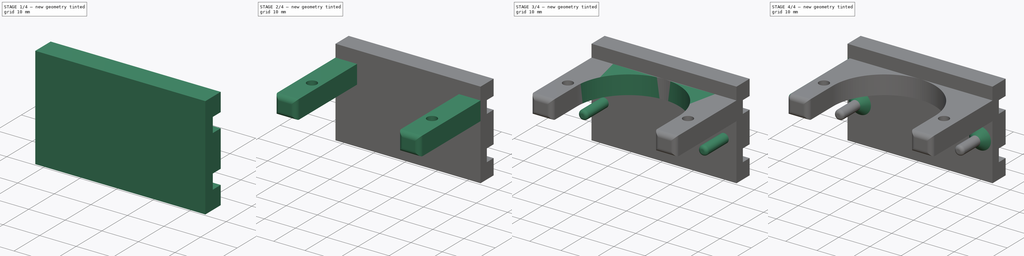
[diagram: build sequence overview — one tinted view per stage of 4, left to right]
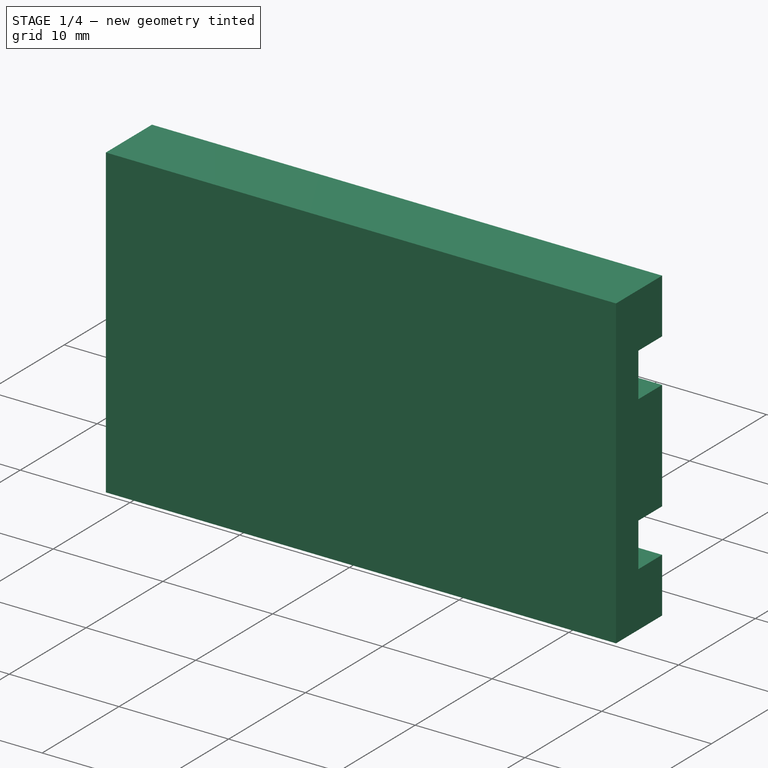
[diagram: stage 1 of 4 — iso view after this stage's code; geometry added in this stage tinted green]
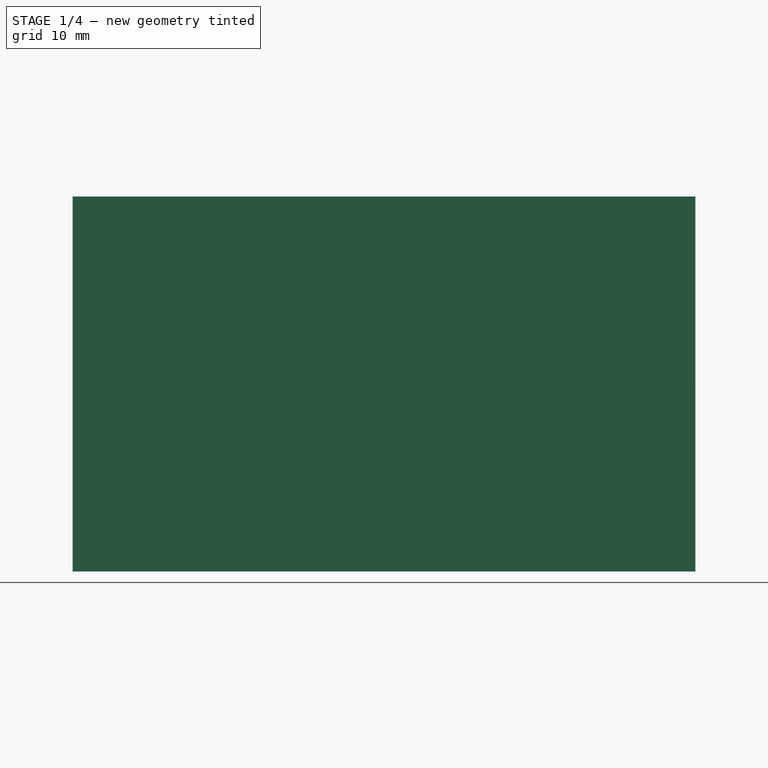
[diagram: stage 1 of 4 — front view after this stage's code; geometry added in this stage tinted green]
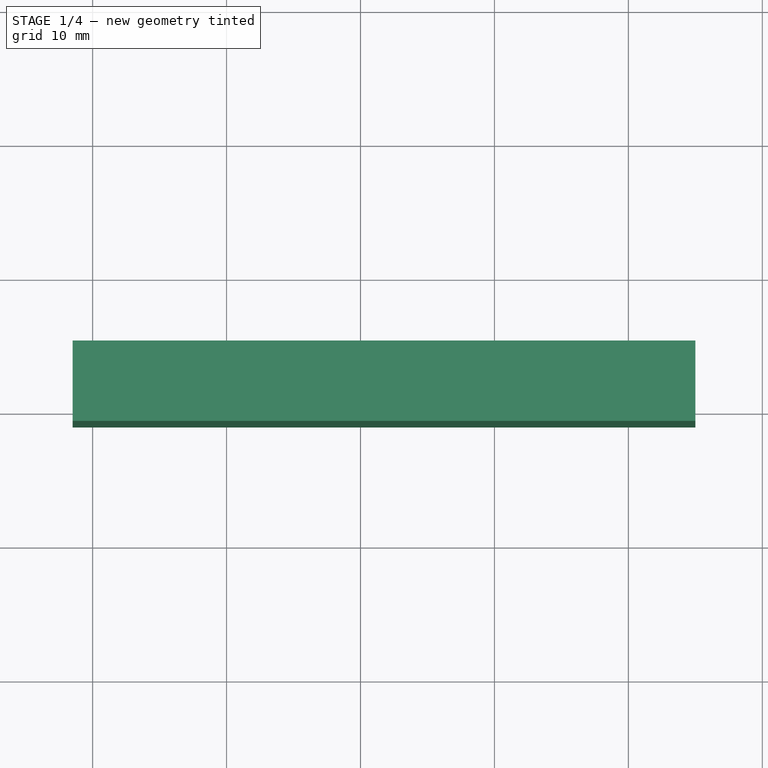
[diagram: stage 1 of 4 — top view after this stage's code; geometry added in this stage tinted green]
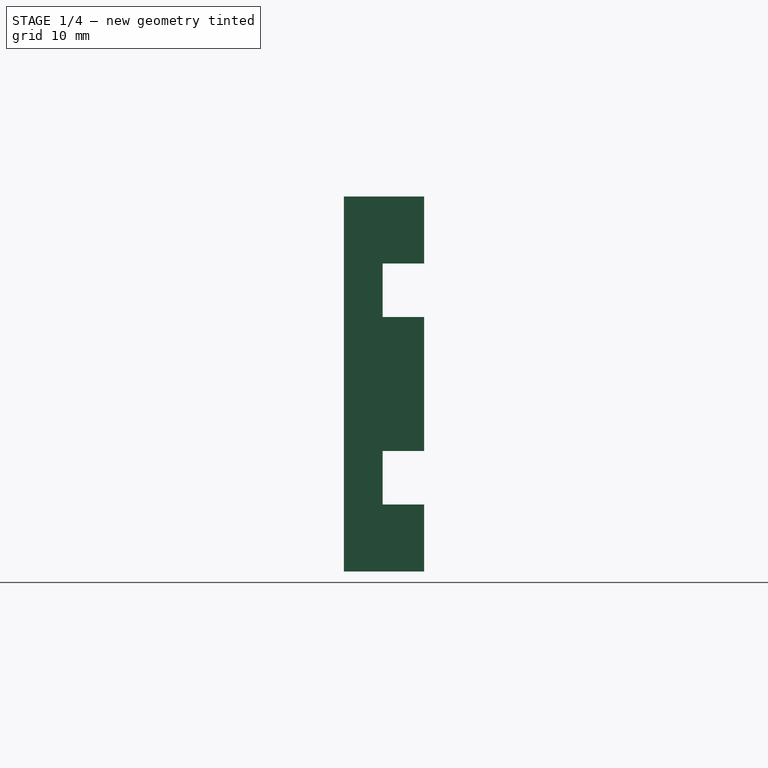
[diagram: stage 1 of 4 — right view after this stage's code; geometry added in this stage tinted green]
FCSTD DOCUMENT  (FreeCAD 1.0R39285 (Git))
Label: wagon-slider-02
License: All rights reserved
LicenseURL: http://en.wikipedia.org/wiki/All_rights_reserved
objects: Sketcher::SketchObject×7, PartDesign::Fillet×4, PartDesign::Pad×3, PartDesign::Pocket×1, PartDesign::Hole×1, PartDesign::Chamfer×1, PartDesign::Body×1, App::Part×1
note: 45 computed .brp shape members not serialized (recipe doc carries the construction recipe); baked Part::Feature solids carry a one-line shape summary decoded from their .brp

FEATURE [Sketcher::SketchObject] Sketch004  label="Sketch-rails"
  ArcFitTolerance = 1e-06
  FullyConstrained = true
  MakeInternals = false
  MapMode = 5
  Placement = pos=(0,-5,0) rot=(1,0,0;1.5708rad)
  sketch-geometry (13):
    g0: LineSegment [constr] StartX=-23.4959 StartY=-17.5 StartZ=0 EndX=58.5041 EndY=-17.5 EndZ=0
    g1: ArcOfCircle CenterX=-53.4959 CenterY=-10.5 CenterZ=0 NormalX=0 NormalY=0 NormalZ=1 AngleXU=0 Radius=2 StartAngle=1.5708 EndAngle=4.71239
    g2: ArcOfCircle CenterX=46.5041 CenterY=-10.5 CenterZ=0 NormalX=0 NormalY=0 NormalZ=1 AngleXU=0 Radius=2 StartAngle=4.71239 EndAngle=7.85398
    g3: LineSegment StartX=-53.4959 StartY=-8.5 StartZ=0 EndX=46.5041 EndY=-8.5 EndZ=0
    g4: LineSegment StartX=-53.4959 StartY=-12.5 StartZ=0 EndX=46.5041 EndY=-12.5 EndZ=0
    g5: ArcOfCircle CenterX=-53.4959 CenterY=-24.5 CenterZ=0 NormalX=0 NormalY=0 NormalZ=1 AngleXU=0 Radius=2 StartAngle=1.5708 EndAngle=4.71239
    g6: ArcOfCircle CenterX=46.5041 CenterY=-24.5 CenterZ=0 NormalX=0 NormalY=0 NormalZ=1 AngleXU=0 Radius=2 StartAngle=4.71239 EndAngle=7.85398
    g7: LineSegment StartX=-53.4959 StartY=-26.5 StartZ=0 EndX=46.5041 EndY=-26.5 EndZ=0
    g8: LineSegment StartX=-53.4959 StartY=-22.5 StartZ=0 EndX=46.5041 EndY=-22.5 EndZ=0
    g9: LineSegment [constr] StartX=-23.4959 StartY=-2.5 StartZ=0 EndX=-23.4959 EndY=-32.5 EndZ=0
    g10: LineSegment [constr] StartX=-23.4959 StartY=-32.5 StartZ=0 EndX=26.5041 EndY=-32.5 EndZ=0
    g11: LineSegment [constr] StartX=26.5041 StartY=-32.5 StartZ=0 EndX=26.5041 EndY=-2.5 EndZ=0
    g12: LineSegment [constr] StartX=26.5041 StartY=-2.5 StartZ=0 EndX=-23.4959 EndY=-2.5 EndZ=0
  constraints (34):
    c: Symmetric(g-6,g-5,g0)
    c: DistanceX(g0,g0) = 82
    c: DistanceX(g-6,g0) = 5
    c: Tangent(g1,g3) = 1.5708
    c: Tangent(g1,g4) = -1.5708
    c: Tangent(g2,g3) = 1.5708
    c: Tangent(g2,g4) = -1.5708
    c: Equal(g1,g2)
    c: Horizontal(g4)
    c: Distance(g1,g2) = 100
    c: Radius(g1) = 2
    c: DistanceY(g0,g1) = 7
    c: DistanceX(g2,g-6) = 2
    c: Symmetric(g1,g5,g0)
    c: Symmetric(g1,g5,g0)
    c: Symmetric(g2,g6,g0)
    c: Symmetric(g2,g6,g0)
    c: Symmetric(g3,g7,g0)
    c: Symmetric(g3,g7,g0)
    c: Symmetric(g4,g8,g0)
    c: Symmetric(g4,g8,g0)
    c: DistanceX(g6,g-5) = 2
    c: Equal(g5,g1)
    c: Coincident(g9,g10)
    c: Coincident(g10,g11)
    c: Coincident(g11,g12)
    c: Coincident(g12,g9)
    c: Vertical(g9)
    c: Vertical(g11)
    c: Horizontal(g10)
    c: Horizontal(g12)
    c: DistanceX(g12,g12) = 50
    c: DistanceY(g11,g11) = 30
    c: Symmetric(g9,g9,g0)
FEATURE [Sketcher::SketchObject] Sketch005  label="Sketch-bed"
  ArcFitTolerance = 1e-06
  FullyConstrained = true
  MakeInternals = false
  MapMode = 5
  Placement = pos=(0,-5,0) rot=(1,0,0;1.5708rad)
  sketch-geometry (13):
    g0: LineSegment [constr] StartX=-21.4959 StartY=-17.5 StartZ=0 EndX=58.5041 EndY=-17.5 EndZ=0
    g1: ArcOfCircle [constr] CenterX=-53.4959 CenterY=-10.5 CenterZ=0 NormalX=0 NormalY=0 NormalZ=1 AngleXU=0 Radius=1.2 StartAngle=1.5708 EndAngle=4.71239
    g2: ArcOfCircle [constr] CenterX=46.5041 CenterY=-10.5 CenterZ=0 NormalX=0 NormalY=0 NormalZ=1 AngleXU=0 Radius=1.2 StartAngle=4.71239 EndAngle=7.85398
    g3: LineSegment [constr] StartX=-53.4959 StartY=-9.3 StartZ=0 EndX=46.5041 EndY=-9.3 EndZ=0
    g4: LineSegment [constr] StartX=-53.4959 StartY=-11.7 StartZ=0 EndX=46.5041 EndY=-11.7 EndZ=0
    g5: ArcOfCircle [constr] CenterX=-53.4959 CenterY=-24.5 CenterZ=0 NormalX=0 NormalY=0 NormalZ=1 AngleXU=0 Radius=1.2 StartAngle=1.5708 EndAngle=4.71239
    g6: ArcOfCircle [constr] CenterX=46.5041 CenterY=-24.5 CenterZ=0 NormalX=0 NormalY=0 NormalZ=1 AngleXU=0 Radius=1.2 StartAngle=4.71239 EndAngle=7.85398
    g7: LineSegment [constr] StartX=-53.4959 StartY=-25.7 StartZ=0 EndX=46.5041 EndY=-25.7 EndZ=0
    g8: LineSegment [constr] StartX=-53.4959 StartY=-23.3 StartZ=0 EndX=46.5041 EndY=-23.3 EndZ=0
    g9: LineSegment StartX=-21.4959 StartY=-3.5 StartZ=0 EndX=-21.4959 EndY=-31.5 EndZ=0
    g10: LineSegment StartX=-21.4959 StartY=-31.5 StartZ=0 EndX=25.0041 EndY=-31.5 EndZ=0
    g11: LineSegment StartX=25.0041 StartY=-31.5 StartZ=0 EndX=25.0041 EndY=-3.5 EndZ=0
    g12: LineSegment StartX=25.0041 StartY=-3.5 StartZ=0 EndX=-21.4959 EndY=-3.5 EndZ=0
  constraints (35):
    c: Symmetric(g-6,g-5,g0)
    c: DistanceX(g0,g0) = 80
    c: DistanceX(g-6,g0) = 5
    c: Tangent(g1,g3) = 1.5708
    c: Tangent(g1,g4) = -1.5708
    c: Tangent(g2,g3) = 1.5708
    c: Tangent(g2,g4) = -1.5708
    c: Equal(g1,g2)
    c: Horizontal(g4)
    c: Distance(g1,g2) = 100
    c: Radius(g1) = 1.2
    c: DistanceY(g0,g1) = 7
    c: DistanceX(g2,g-6) = 2
    c: Symmetric(g1,g5,g0)
    c: Symmetric(g1,g5,g0)
    c: Symmetric(g2,g6,g0)
    c: Symmetric(g2,g6,g0)
    c: Symmetric(g3,g7,g0)
    c: Symmetric(g3,g7,g0)
    c: Symmetric(g4,g8,g0)
    c: Symmetric(g4,g8,g0)
    c: DistanceX(g6,g-5) = 2
    c: Equal(g5,g1)
    c: Coincident(g9,g10)
    c: Coincident(g10,g11)
    c: Coincident(g11,g12)
    c: Coincident(g12,g9)
    c: Vertical(g9)
    c: Vertical(g11)
    c: Horizontal(g10)
    c: Horizontal(g12)
    c: DistanceX(g12,g12) = 46.5
    c: DistanceY(g11,g11) = 28
    c: Symmetric(g9,g9,g0)
    c: DistanceY(g2,g11) = 5.8
FEATURE [PartDesign::Pad] Pad
  Direction = (0,-1,2e-16)
  Length = 6
  Length2 = 10
  Placement = pos=(0,-5,0) rot=(1,0,0;1.5708rad)
  Profile = -> Sketch005
  ReferenceAxis = -> Sketch005 [N_Axis]
  Suppressed = false
  Type = 0
FEATURE [PartDesign::Pocket] Pocket
  BaseFeature = -> Pad
  Direction = (0,1,-2e-16)
  Length = 3.1
  Length2 = 5
  Placement = pos=(0,-5,0) rot=(1,0,0;1.5708rad)
  Profile = -> Sketch004
  ReferenceAxis = -> Sketch004 [N_Axis]
  Reversed = true
  Suppressed = false
  Type = 0
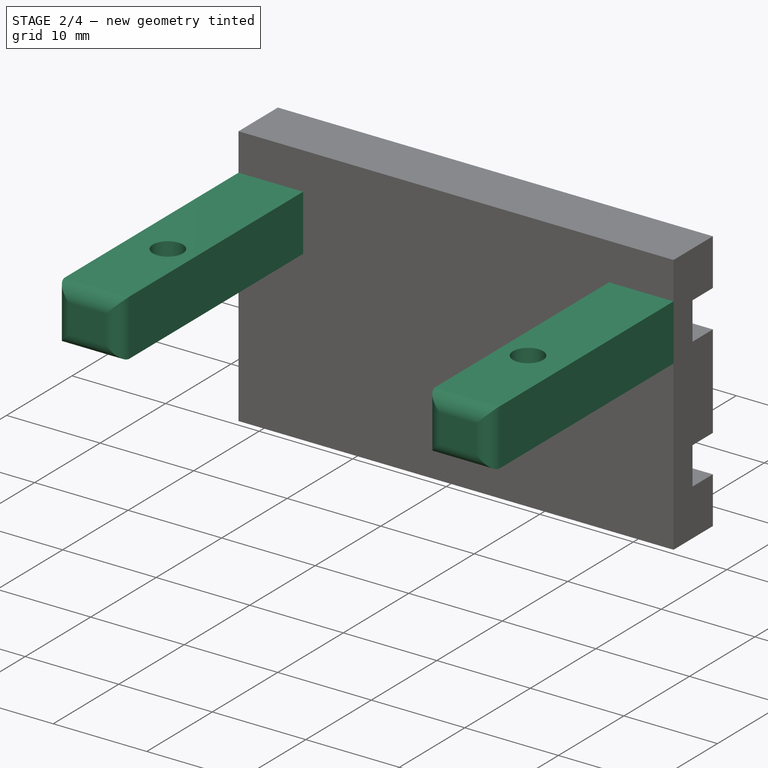
[diagram: stage 2 of 4 — iso view after this stage's code; geometry added in this stage tinted green]
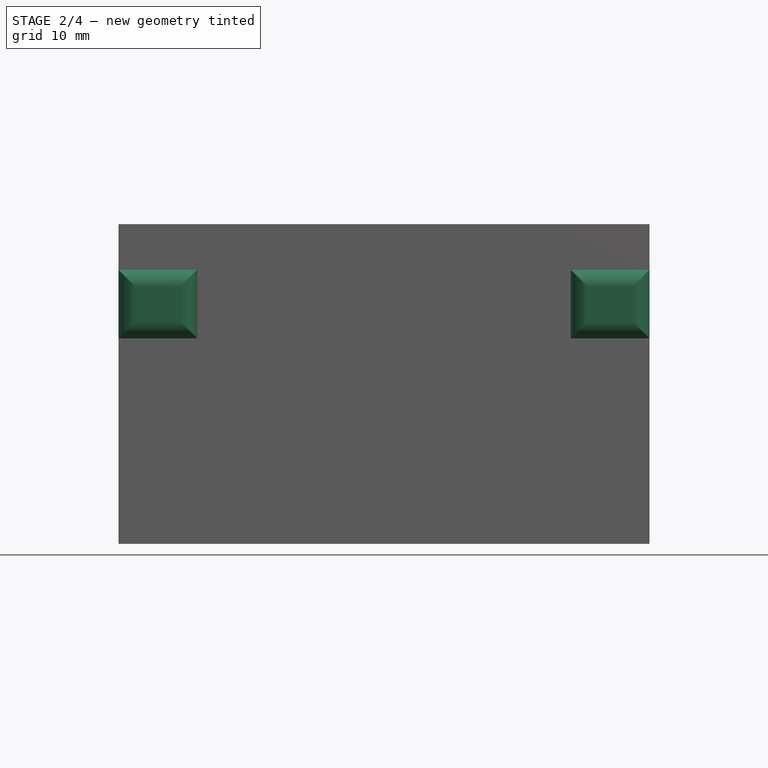
[diagram: stage 2 of 4 — front view after this stage's code; geometry added in this stage tinted green]
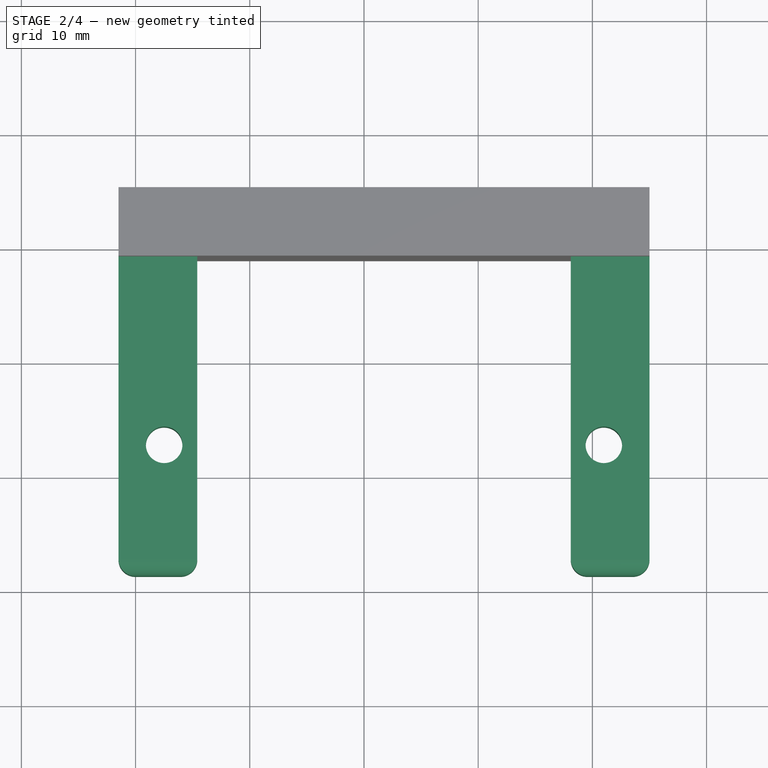
[diagram: stage 2 of 4 — top view after this stage's code; geometry added in this stage tinted green]
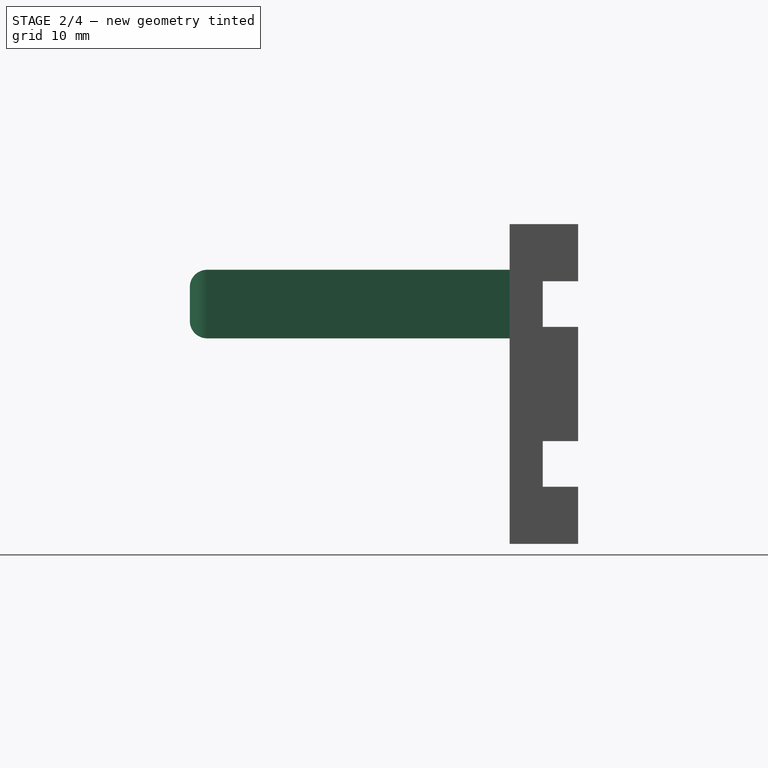
[diagram: stage 2 of 4 — right view after this stage's code; geometry added in this stage tinted green]
FEATURE [Sketcher::SketchObject] Sketch
  ArcFitTolerance = 1e-06
  AttachmentSupport = -> [Pocket]
  ExternalGeometry = -> [Pocket]
  FullyConstrained = true
  MakeInternals = false
  MapMode = 5
  Placement = pos=(0,-11,0) rot=(1,0,0;1.5708rad)
  sketch-geometry (8):
    g0: LineSegment StartX=-21.4959 StartY=-7.5 StartZ=0 EndX=-21.4959 EndY=-13.5 EndZ=0
    g1: LineSegment StartX=-21.4959 StartY=-13.5 StartZ=0 EndX=-14.5959 EndY=-13.5 EndZ=0
    g2: LineSegment StartX=-14.5959 StartY=-13.5 StartZ=0 EndX=-14.5959 EndY=-7.5 EndZ=0
    g3: LineSegment StartX=-14.5959 StartY=-7.5 StartZ=0 EndX=-21.4959 EndY=-7.5 EndZ=0
    g4: LineSegment StartX=18.1041 StartY=-7.5 StartZ=0 EndX=18.1041 EndY=-13.5 EndZ=0
    g5: LineSegment StartX=18.1041 StartY=-13.5 StartZ=0 EndX=25.0041 EndY=-13.5 EndZ=0
    g6: LineSegment StartX=25.0041 StartY=-13.5 StartZ=0 EndX=25.0041 EndY=-7.5 EndZ=0
    g7: LineSegment StartX=25.0041 StartY=-7.5 StartZ=0 EndX=18.1041 EndY=-7.5 EndZ=0
  constraints (24):
    c: Coincident(g0,g1)
    c: Coincident(g1,g2)
    c: Coincident(g2,g3)
    c: Coincident(g3,g0)
    c: Vertical(g0)
    c: Vertical(g2)
    c: Horizontal(g1)
    c: Horizontal(g3)
    c: Distance(g0,g2) = 6.9
    c: Distance(g1,g3) = 6
    c: Coincident(g4,g5)
    c: Coincident(g5,g6)
    c: Coincident(g6,g7)
    c: Coincident(g7,g4)
    c: Vertical(g4)
    c: Vertical(g6)
    c: Horizontal(g5)
    c: Horizontal(g7)
    c: Distance(g5,g7) = 6
    c: Equal(g7,g3)
    c: PointOnObject(g0,g-3)
    c: DistanceY(g1,g4) = 0
    c: DistanceY(g0,g-5) = 4
    c: PointOnObject(g5,g-4)
FEATURE [PartDesign::Pad] Pad001  label="Legs"
  BaseFeature = -> Pocket
  Direction = (0,-1,2e-16)
  Length = 28
  Length2 = 10
  Placement = pos=(0,-5,0) rot=(1,0,0;1.5708rad)
  Profile = -> Sketch
  ReferenceAxis = -> Sketch [N_Axis]
  Suppressed = false
  Type = 0
FEATURE [PartDesign::Fillet] Fillet
  Base = -> Pad001 [Edge62,Edge61,Edge57,Edge59,Edge53,Edge51,Edge47,Edge54]
  BaseFeature = -> Pad001
  Placement = pos=(0,-5,0) rot=(1,0,0;1.5708rad)
  Radius = 1.5
  SupportTransform = false
  Suppressed = false
  UseAllEdges = false
FEATURE [Sketcher::SketchObject] Sketch006  label="Sketch-motor-mount-holes"
  ArcFitTolerance = 1e-06
  AttachmentSupport = -> [XY_Plane001]
  ExternalGeometry = -> [Fillet]
  FullyConstrained = false
  MakeInternals = false
  MapMode = 5
  sketch-geometry (6):
    g0: LineSegment [constr] StartX=21.0041 StartY=-27.5 StartZ=0 EndX=21.0041 EndY=-11 EndZ=0
    g1: LineSegment [constr] StartX=-17.4959 StartY=-27.5 StartZ=0 EndX=-17.4959 EndY=-11 EndZ=0
    g2: Circle CenterX=21.0041 CenterY=-27.5 CenterZ=0 NormalX=0 NormalY=0 NormalZ=1 AngleXU=0 Radius=1.6
    g3: Circle CenterX=-17.4959 CenterY=-27.5 CenterZ=0 NormalX=0 NormalY=0 NormalZ=1 AngleXU=0 Radius=1.6
    g4: LineSegment [constr] StartX=-21.4959 StartY=-11 StartZ=0 EndX=25.0041 EndY=-11 EndZ=0
    g5: LineSegment [constr] StartX=1.75409 StartY=-11 StartZ=0 EndX=1.75409 EndY=-41 EndZ=0
  constraints (20):
    c: Vertical(g0)
    c: Vertical(g1)
    c: Symmetric(g-3,g-3,g1)
    c: DistanceY(g0,g0) = 16.5
    c: Diameter(g2) = 3.2
    c: Coincident(g2,g0)
    c: Diameter(g3) = 3.2
    c: Coincident(g3,g1)
    c: DistanceX(g1,g0) = 38.5
    c: Coincident(g4,g-3)
    c: Horizontal(g4)
    c: PointOnObject(g0,g4)
    c: Distance(g5) = 30
    c: Vertical(g5)
    c: Symmetric(g4,g4,g5)
    c: Symmetric(g1,g0,g5)
    c: DistanceX(g1,g-4) = 2.9
    c: DistanceX(g-5,g0) = 2.9
    c: Symmetric(g-4,g-5,g5)
    c: DistanceX(g-4,g-5) = 32.7
FEATURE [PartDesign::Hole] Hole
  BaseFeature = -> Fillet
  CustomThreadClearance = 0
  Depth = 28
  DepthType = 0
  Diameter = 3.2
  DrillForDepth = false
  DrillPoint = 1
  DrillPointAngle = 118
  HoleCutCountersinkAngle = 90
  HoleCutCustomValues = false
  HoleCutDepth = 0
  HoleCutDiameter = 6.1
  HoleCutType = 0
  ModelThread = false
  Placement = pos=(0,-5,0) rot=(1,0,0;1.5708rad)
  Profile = -> Sketch006
  Suppressed = false
  Tapered = false
  TaperedAngle = 90
  ThreadClass = 0
  ThreadDepth = 28
  ThreadDepthType = 0
  ThreadDirection = 0
  ThreadFit = 1
  ThreadSize = 9
  ThreadType = 1
  Threaded = false
  UseCustomThreadClearance = false
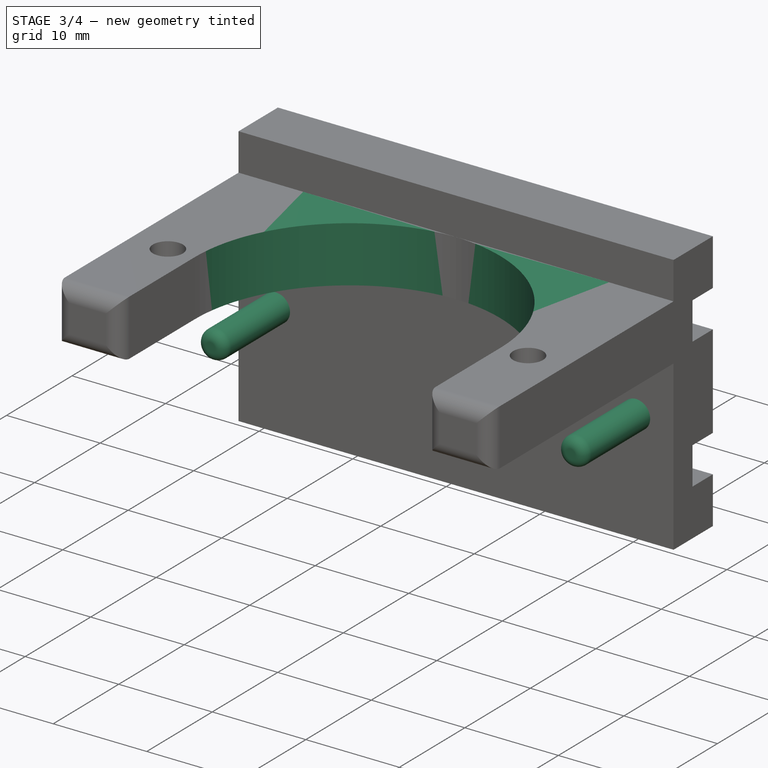
[diagram: stage 3 of 4 — iso view after this stage's code; geometry added in this stage tinted green]
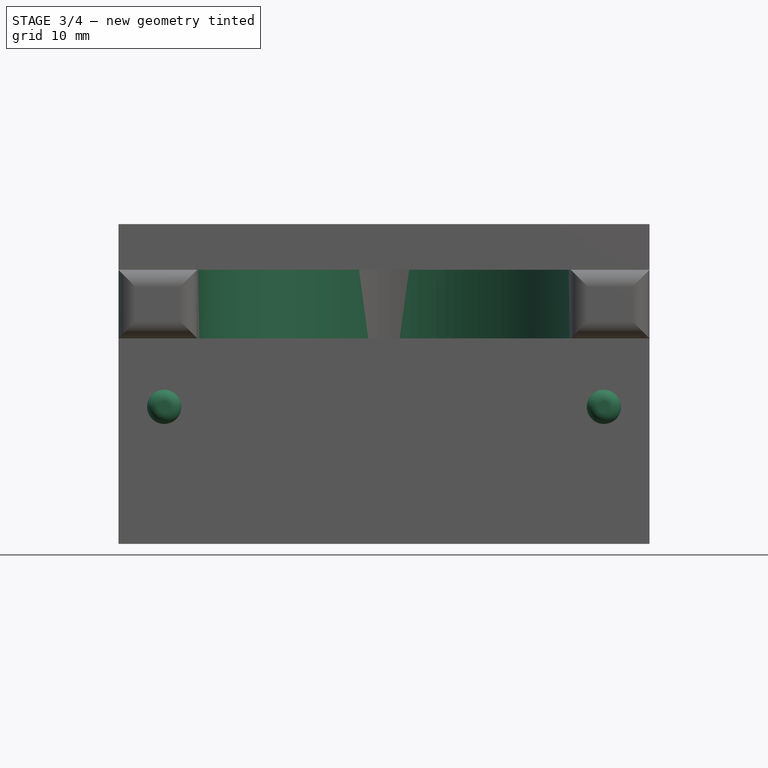
[diagram: stage 3 of 4 — front view after this stage's code; geometry added in this stage tinted green]
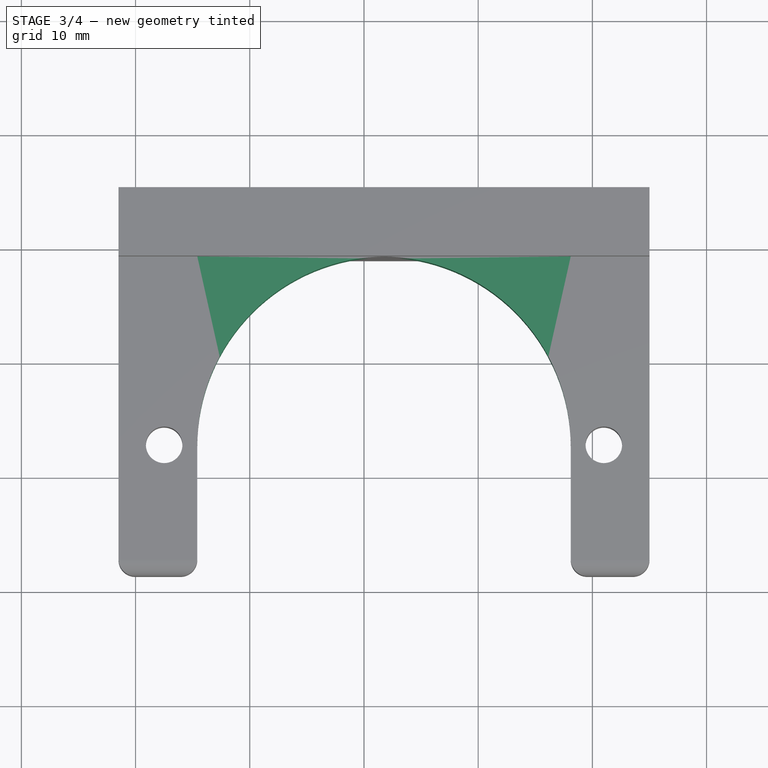
[diagram: stage 3 of 4 — top view after this stage's code; geometry added in this stage tinted green]
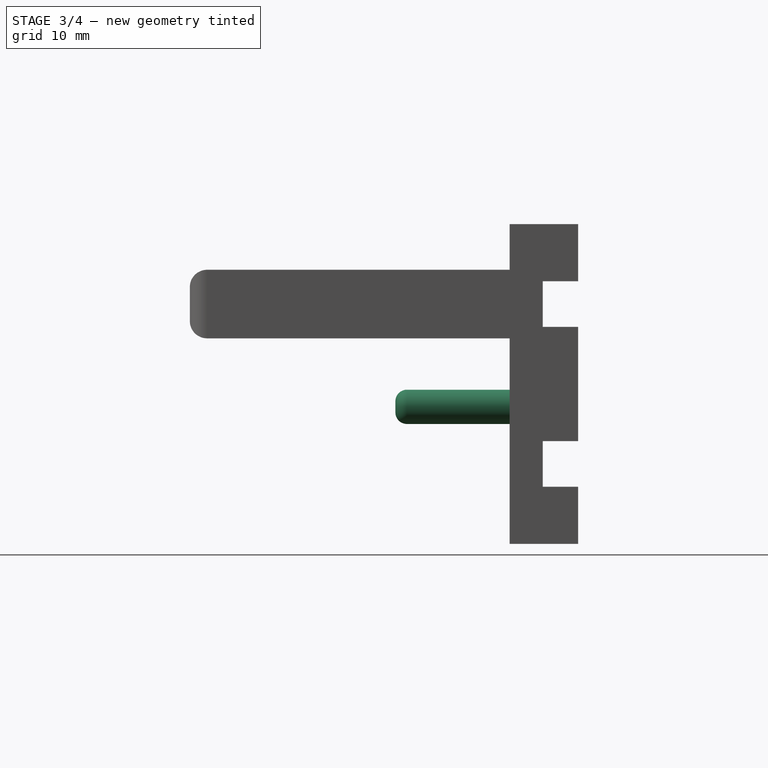
[diagram: stage 3 of 4 — right view after this stage's code; geometry added in this stage tinted green]
FEATURE [Sketcher::SketchObject] Sketch007  label="Sketch-toppeg"
  ArcFitTolerance = 1e-06
  AttachmentSupport = -> [Hole]
  ExternalGeometry = -> [Hole]
  FullyConstrained = true
  MakeInternals = false
  MapMode = 5
  Placement = pos=(0,-11,0) rot=(1,0,0;1.5708rad)
  sketch-geometry (3):
    g0: LineSegment [constr] StartX=-21.4959 StartY=-19.5 StartZ=0 EndX=25.0041 EndY=-19.5 EndZ=0
    g1: Circle CenterX=-17.4959 CenterY=-19.5 CenterZ=0 NormalX=0 NormalY=0 NormalZ=1 AngleXU=0 Radius=1.5
    g2: Circle CenterX=21.0041 CenterY=-19.5 CenterZ=0 NormalX=0 NormalY=0 NormalZ=1 AngleXU=0 Radius=1.5
  constraints (9):
    c: Symmetric(g-3,g-4,g0)
    c: Diameter(g1) = 3
    c: PointOnObject(g1,g0)
    c: Diameter(g2) = 3
    c: PointOnObject(g2,g0)
    c: DistanceX(g0,g1) = 4
    c: DistanceX(g2,g0) = 4
    c: DistanceX(g1,g2) = 38.5
    c: Horizontal(g0)
FEATURE [PartDesign::Pad] Pad002
  BaseFeature = -> Hole
  Direction = (0,-1,2e-16)
  Length = 10
  Length2 = 10
  Placement = pos=(0,-5,0) rot=(1,0,0;1.5708rad)
  Profile = -> Sketch007
  ReferenceAxis = -> Sketch007 [N_Axis]
  Suppressed = false
  Type = 0
FEATURE [PartDesign::Fillet] Fillet001
  Base = -> Pad002 [Edge80,Edge78]
  BaseFeature = -> Pad002
  Placement = pos=(0,-5,0) rot=(1,0,0;1.5708rad)
  Radius = 1
  SupportTransform = false
  Suppressed = false
  UseAllEdges = false
FEATURE [PartDesign::Fillet] Fillet002
  Base = -> Fillet001 [Edge10,Edge13]
  BaseFeature = -> Fillet001
  Placement = pos=(0,-5,0) rot=(1,0,0;1.5708rad)
  Radius = 16.6
  SupportTransform = false
  Suppressed = false
  UseAllEdges = false
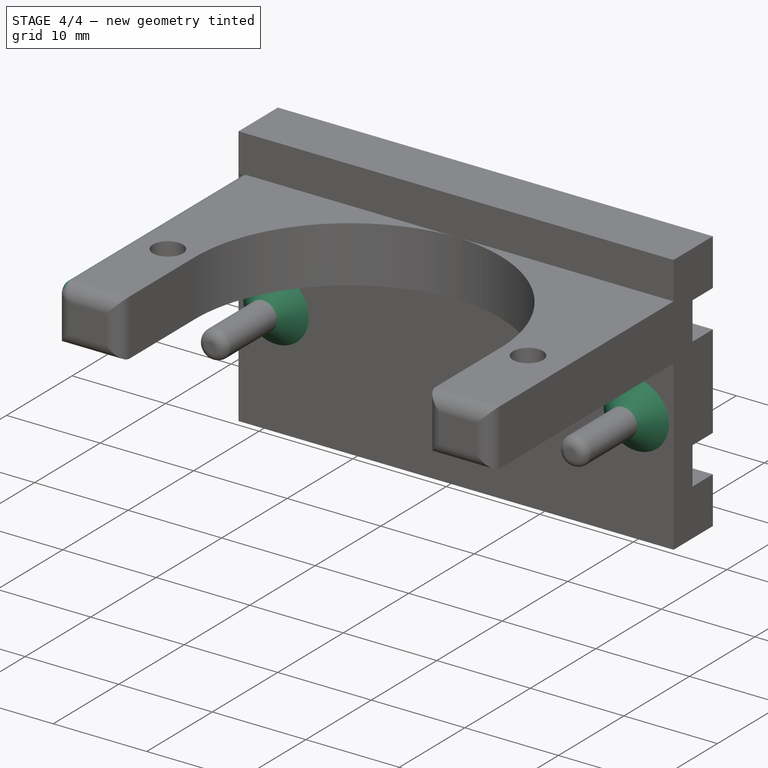
[diagram: stage 4 of 4 — iso view after this stage's code; geometry added in this stage tinted green]
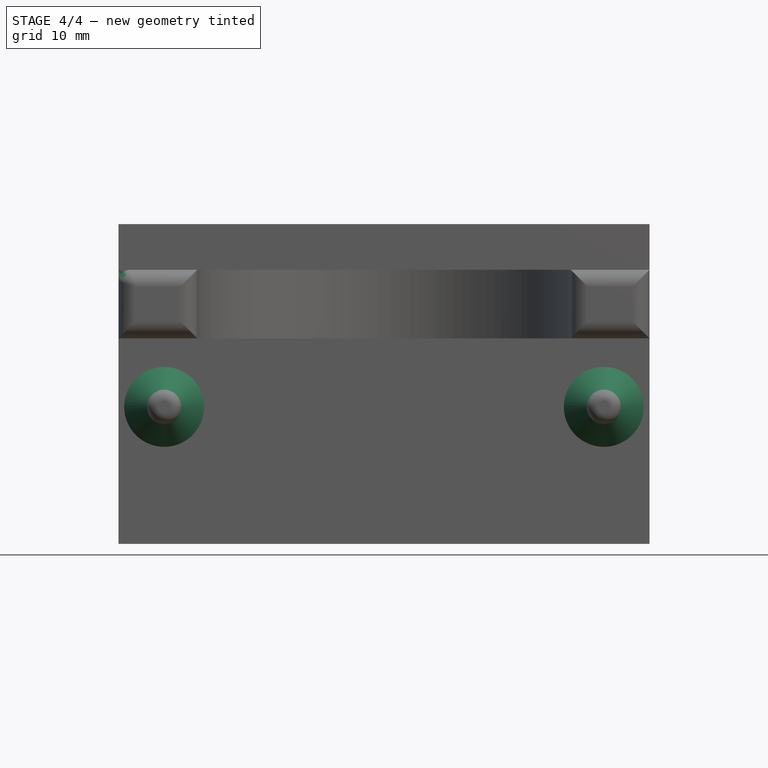
[diagram: stage 4 of 4 — front view after this stage's code; geometry added in this stage tinted green]
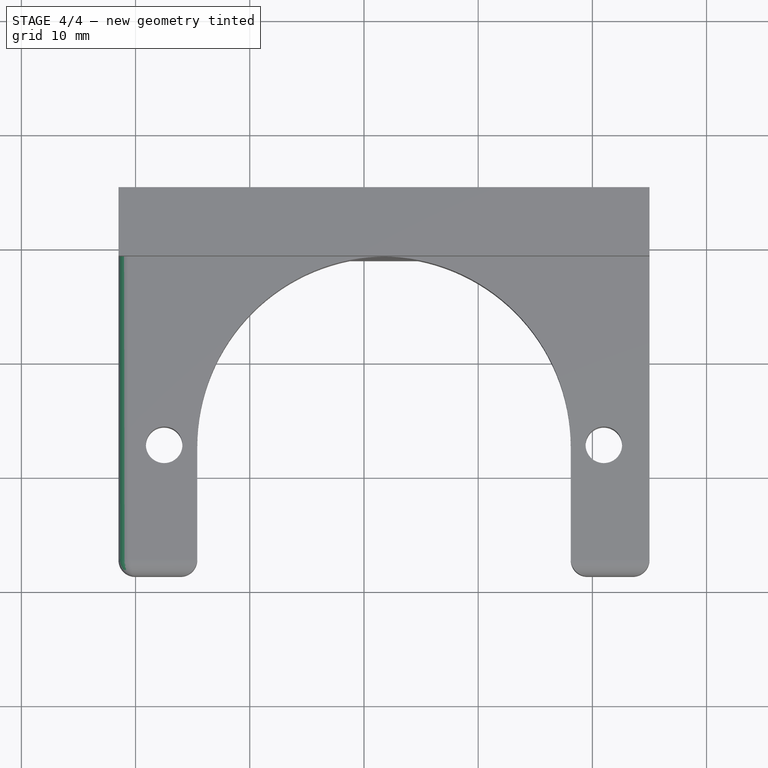
[diagram: stage 4 of 4 — top view after this stage's code; geometry added in this stage tinted green]
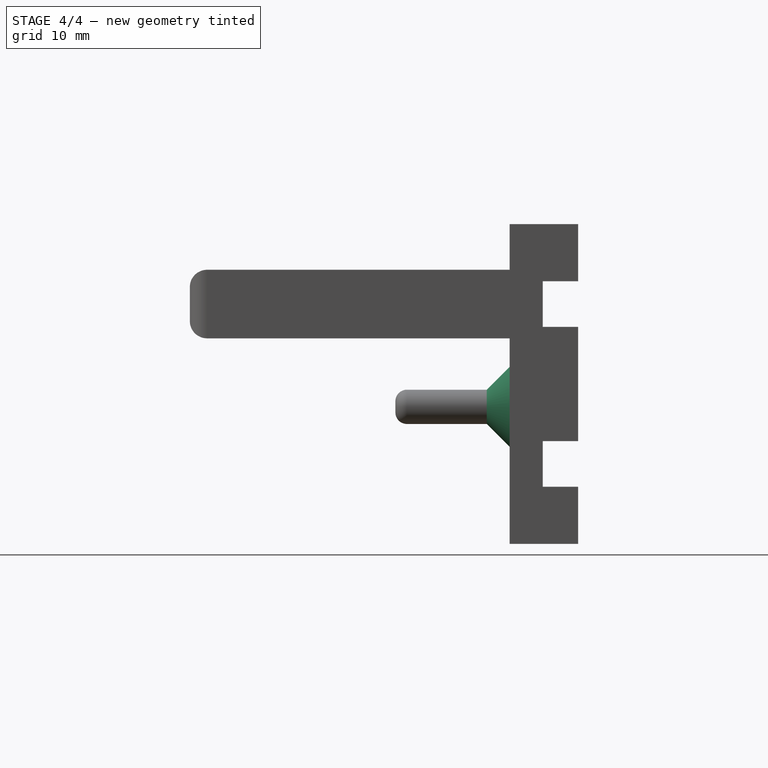
[diagram: stage 4 of 4 — right view after this stage's code; geometry added in this stage tinted green]
FEATURE [Sketcher::SketchObject] Sketch008  label="motor gap"
  ArcFitTolerance = 1e-06
  AttachmentSupport = -> [Fillet002]
  ExternalGeometry = -> [Fillet002]
  FullyConstrained = true
  MakeInternals = false
  MapMode = 5
  Placement = pos=(0,-5,-7.5) rot=(0,0,1;3.14159rad)
  constraints (1):
    c: DistanceX(g-3,g-4) = 32.7
FEATURE [PartDesign::Fillet] Fillet003
  Base = -> Fillet002 [Edge40]
  BaseFeature = -> Fillet002
  Placement = pos=(0,-5,0) rot=(1,0,0;1.5708rad)
  Radius = 1
  SupportTransform = false
  Suppressed = false
  UseAllEdges = false
FEATURE [PartDesign::Chamfer] Chamfer
  Angle = 45
  Base = -> Fillet003 [Edge19,Edge20]
  BaseFeature = -> Fillet003
  ChamferType = 0
  FlipDirection = false
  Placement = pos=(0,-5,0) rot=(1,0,0;1.5708rad)
  Size = 2
  Size2 = 1
  SupportTransform = false
  Suppressed = false
  UseAllEdges = false
FEATURE [Sketcher::SketchObject] Sketch009  label="Rail-descr"
  ArcFitTolerance = 1e-06
  AttachmentSupport = -> [Chamfer]
  ExternalGeometry = -> [Chamfer]
  FullyConstrained = true
  MakeInternals = false
  MapMode = 5
  Placement = pos=(25.0041,-5,0) rot=(0.707107,0,0.707107;3.14159rad)
  constraints (5):
    c: DistanceY(g-5,g-3) = 6
    c: DistanceY(g-4,g-3) = 2.9
    c: DistanceY(g-5,g-4) = 3.1
    c: DistanceX(g-6,g-7) = 4
    c: DistanceX(g-4,g-4) = 4
FEATURE [PartDesign::Body] Body
  AllowCompound = false
  Group = -> [Sketch004,Sketch005,Pad,Pocket,Sketch,Pad001,Fillet,Sketch006,Hole,Sketch007,Pad002,Fillet001,Fillet002,Sketch008,Fillet003,Chamfer,Sketch009]
  Origin = -> Origin001
  Tip = -> Chamfer
FEATURE [App::Part] Part
  Group = -> [Body]
  Origin = -> Origin
  Placement = pos=(0,0,0) rot=(1,0,0;-1.5708rad)
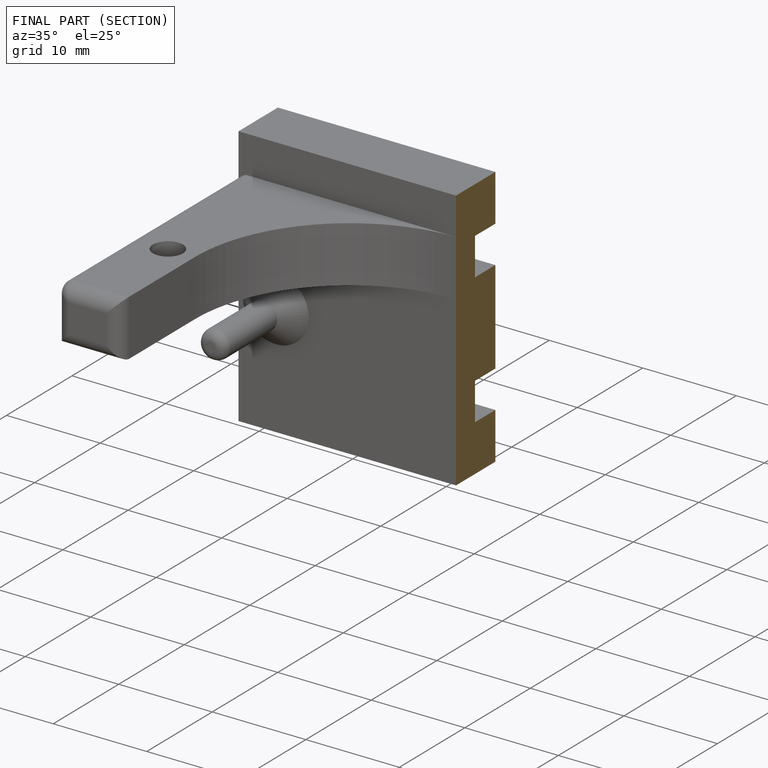
[diagram: finished part — half-section view (interior)]
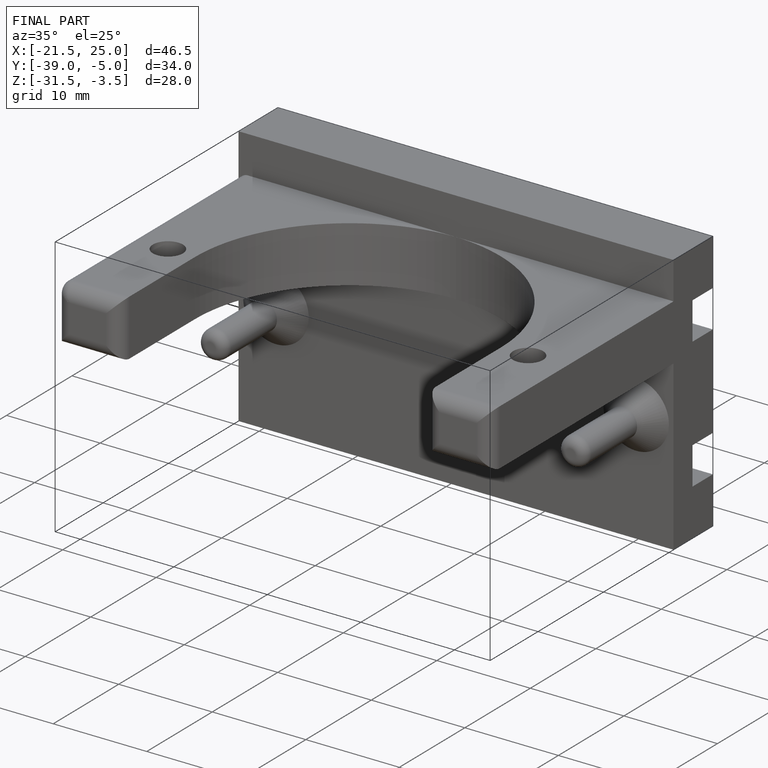
[diagram: finished part — iso view with bounding-box wireframe]
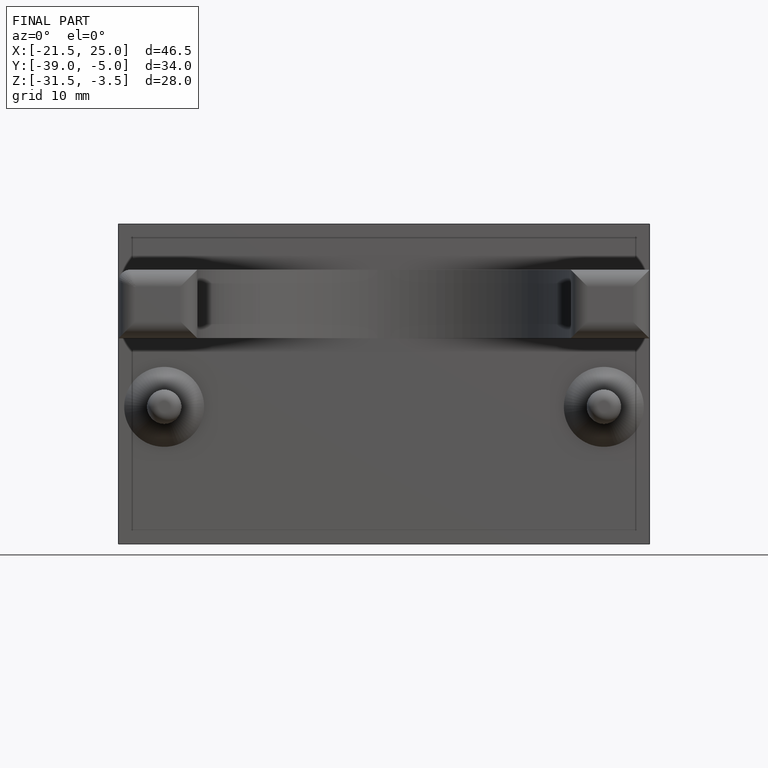
[diagram: finished part — front view with bounding-box wireframe]
